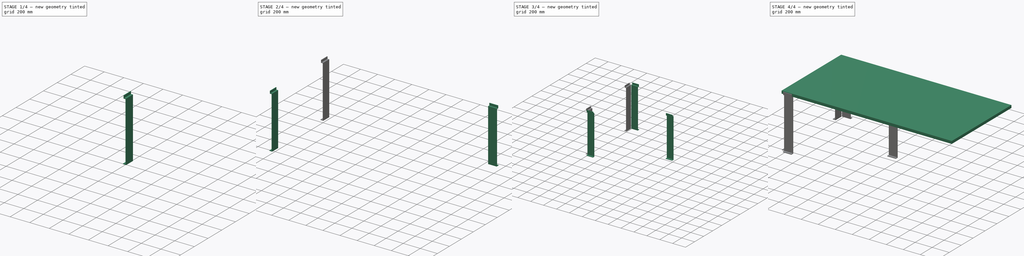
[diagram: build sequence overview — one tinted view per stage of 4, left to right]
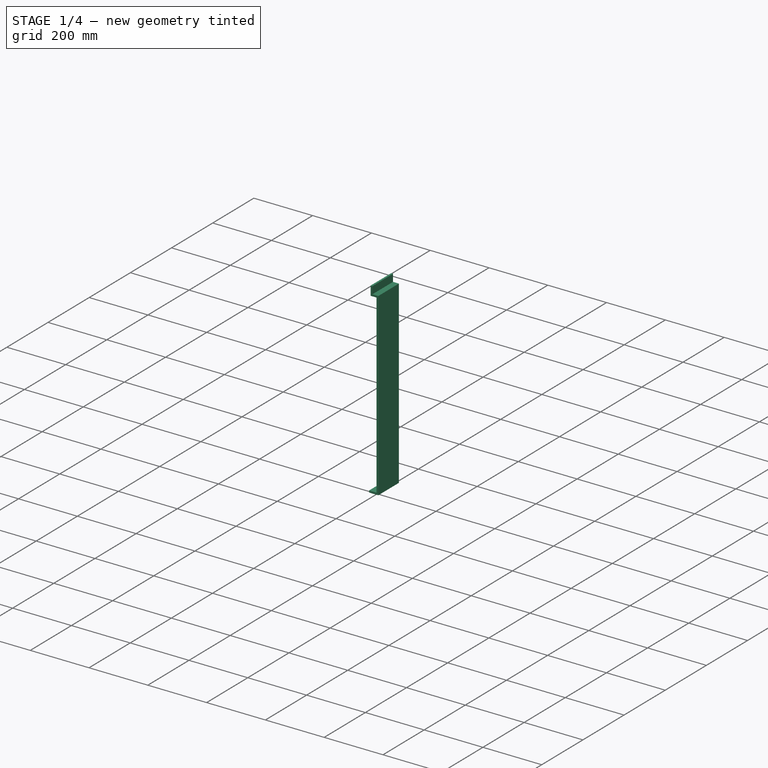
[diagram: stage 1 of 4 — iso view after this stage's code; geometry added in this stage tinted green]
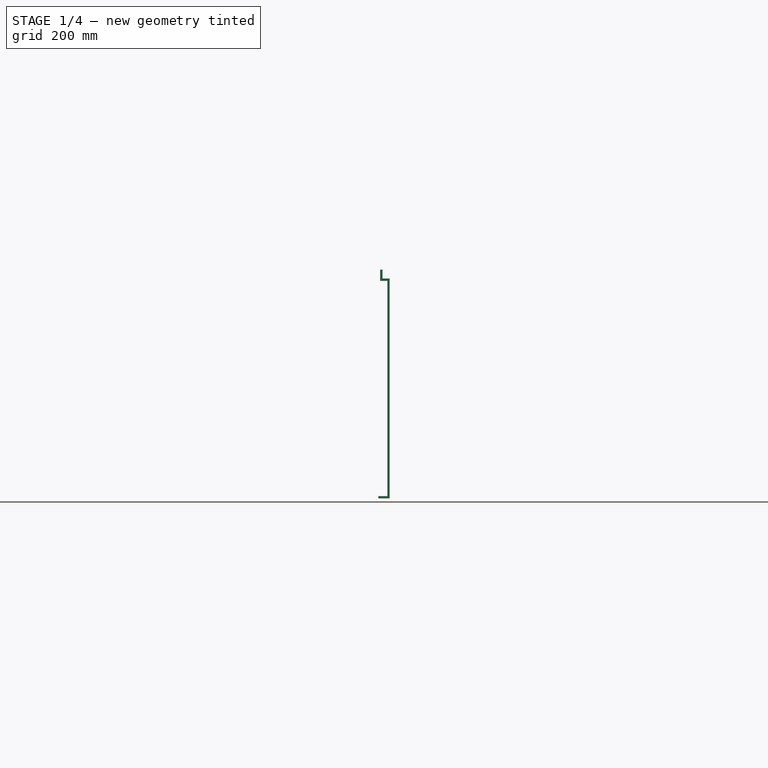
[diagram: stage 1 of 4 — front view after this stage's code; geometry added in this stage tinted green]
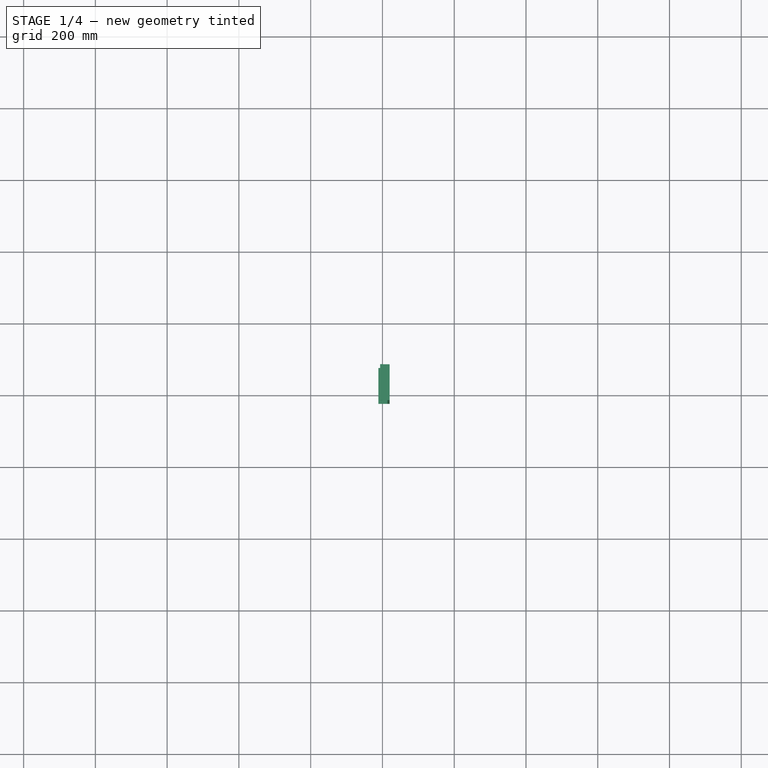
[diagram: stage 1 of 4 — top view after this stage's code; geometry added in this stage tinted green]
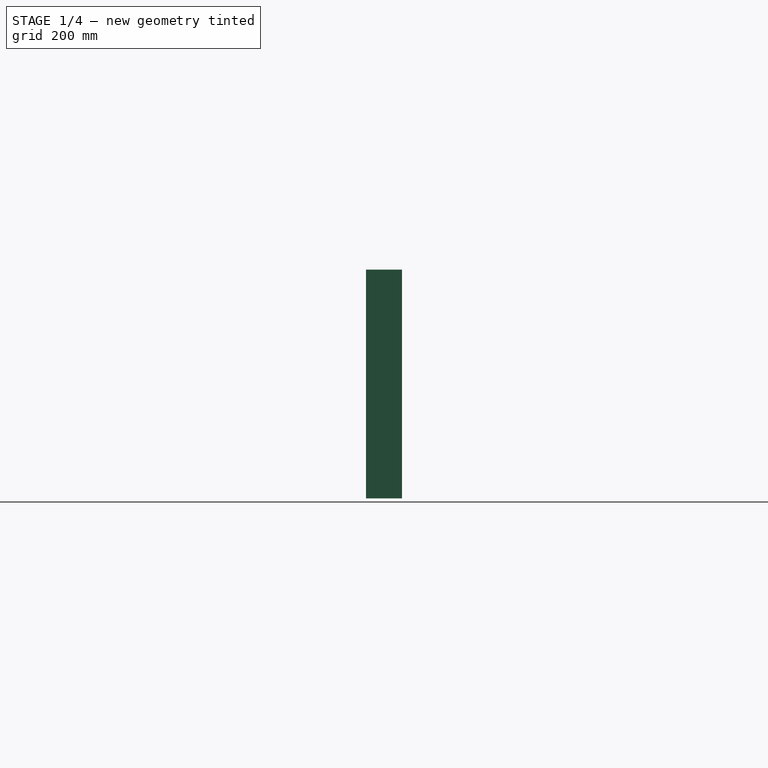
[diagram: stage 1 of 4 — right view after this stage's code; geometry added in this stage tinted green]
FCSTD DOCUMENT  (FreeCAD 0.18R4 (GitTag))
Label: WoodArt Ejercicio 003
Comment: https://designlibre.org/license-en/\nStarting from the topic that matters most in these times COVID-19 I have read a note from a protector for doctors called AerosolBox with a CC design for reproducti... (+266 chars)
License: Other
LicenseURL: https://designlibre.org/license-en/
objects: Sketcher::SketchObject×7, PartDesign::Pad×7, PartDesign::Body×7, Part::Mirroring×6, App::Part×2
note: 34 computed .brp shape members not serialized (recipe doc carries the construction recipe); baked Part::Feature solids carry a one-line shape summary decoded from their .brp

FEATURE [PartDesign::Body] Body005
  Group = -> [Sketch005,Pad005]
  Origin = -> Origin007
  Placement = pos=(977,-500,0) rot=(0,0,1;0rad)
  Tip = -> Pad005
FEATURE [Sketcher::SketchObject] Sketch006
  MapMode = 5
  Placement = pos=(0,0,0) rot=(0.57735,0.57735,0.57735;2.0944rad)
  Support = -> [YZ_Plane008]
  sketch-geometry (12):
    g0: LineSegment StartX=0 StartY=25 StartZ=0 EndX=0 EndY=0 EndZ=0
    g1: LineSegment StartX=0 StartY=0 StartZ=0 EndX=20 EndY=0 EndZ=0
    g2: LineSegment StartX=20 StartY=0 StartZ=0 EndX=20 EndY=-612.7 EndZ=0
    g3: LineSegment StartX=20 StartY=-612.7 StartZ=0 EndX=-11.35 EndY=-612.7 EndZ=0
    g4: LineSegment StartX=-11.35 StartY=-612.7 StartZ=0 EndX=-11.35 EndY=-606.35 EndZ=0
    g5: LineSegment StartX=-11.35 StartY=-606.35 StartZ=0 EndX=13.65 EndY=-606.35 EndZ=0
    g6: LineSegment StartX=13.65 StartY=-606.35 StartZ=0 EndX=13.65 EndY=-6.35 EndZ=0
    g7: LineSegment StartX=13.65 StartY=-6.35 StartZ=0 EndX=-6.35 EndY=-6.35 EndZ=0
    g8: LineSegment StartX=-6.35 StartY=-6.35 StartZ=0 EndX=-6.35 EndY=25 EndZ=0
    g9: LineSegment StartX=-6.35 StartY=25 StartZ=0 EndX=0 EndY=25 EndZ=0
    g10: LineSegment [constr] StartX=13.65 StartY=-606.35 StartZ=0 EndX=20 EndY=-606.35 EndZ=0
    g11: LineSegment [constr] StartX=13.65 StartY=-6.35 StartZ=0 EndX=13.65 EndY=0 EndZ=0
  constraints (35):
    c: PointOnObject(g0,g-2)
    c: Coincident(g0,g-1)
    c: Coincident(g0,g1)
    c: PointOnObject(g1,g-1)
    c: Coincident(g1,g2)
    c: Vertical(g2)
    c: Coincident(g2,g3)
    c: Horizontal(g3)
    c: Coincident(g3,g4)
    c: Coincident(g4,g5)
    c: Horizontal(g5)
    c: Coincident(g5,g6)
    c: Vertical(g6)
    c: Coincident(g6,g7)
    c: Horizontal(g7)
    c: Coincident(g7,g8)
    c: Vertical(g8)
    c: Coincident(g8,g9)
    c: Coincident(g9,g0)
    c: Horizontal(g9)
    c: Vertical(g4)
    c: Coincident(g5,g10)
    c: PointOnObject(g10,g2)
    c: Horizontal(g10)
    c: DistanceY(g4,g4) = 6.35
    c: DistanceY(g6,g6) = 600
    c: DistanceY(g0,g0) = 25
    c: Coincident(g6,g11)
    c: PointOnObject(g11,g1)
    c: Vertical(g11)
    c: Equal(g9,g11)
    c: Equal(g11,g10)
    c: Equal(g10,g4)
    c: DistanceX(g5,g5) = 25
    c: DistanceX(g7,g7) = 20
FEATURE [PartDesign::Pad] Pad006
  Length = 100
  Length2 = 100
  Placement = pos=(0,0,0) rot=(0.57735,0.57735,0.57735;2.0944rad)
  Profile = -> Sketch006
  Refine = true
  Reversed = true
  Type = 0
FEATURE [Part::Mirroring] Part__Mirroring001  label="Body006 (Mirror #2)"
  Base = (0,0,0)
  Normal = (0,1,0)
  Source = -> Body006
FEATURE [Part::Mirroring] Part__Mirroring005  label="Body006 (Mirror #6)"
  Base = (0,0,0)
  Normal = (1,0,0)
  Source = -> Part__Mirroring001
FEATURE [App::Part] Part
  Group = -> [Body,Body005,Body006,Part__Mirroring,Part__Mirroring001,Part__Mirroring003,Part__Mirroring002,Part__Mirroring005,Part__Mirroring004]
  Origin = -> Origin
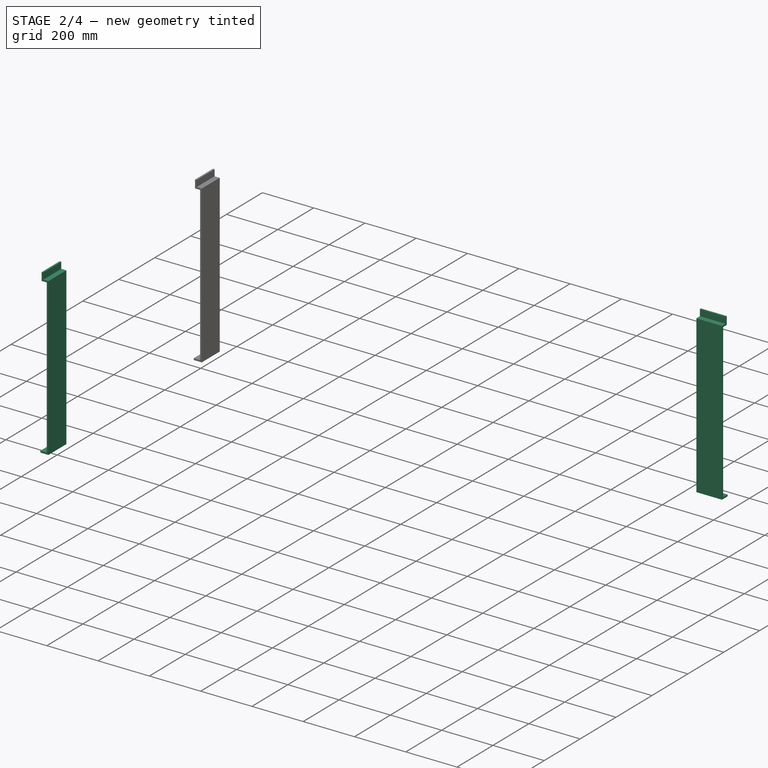
[diagram: stage 2 of 4 — iso view after this stage's code; geometry added in this stage tinted green]
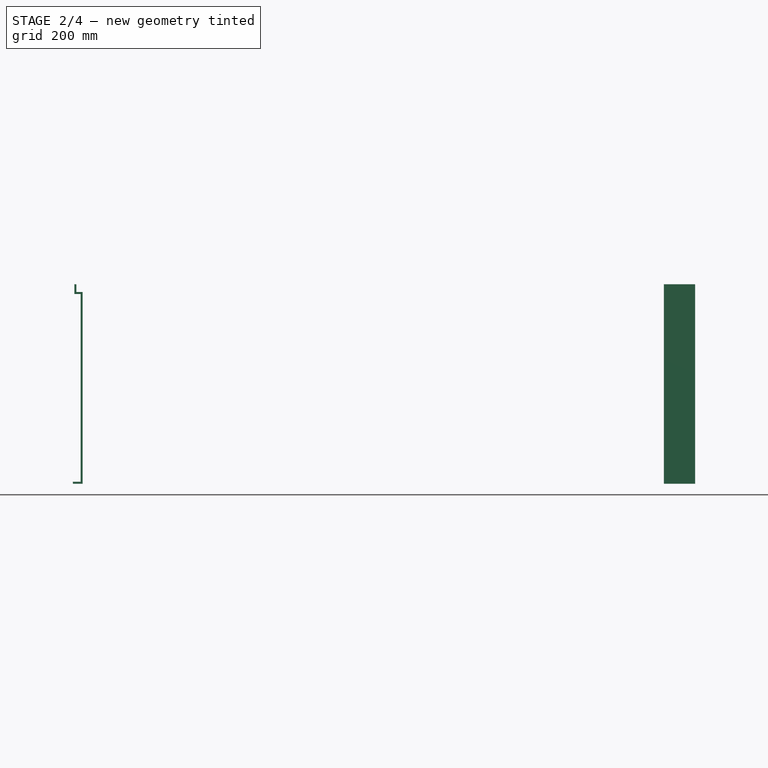
[diagram: stage 2 of 4 — front view after this stage's code; geometry added in this stage tinted green]
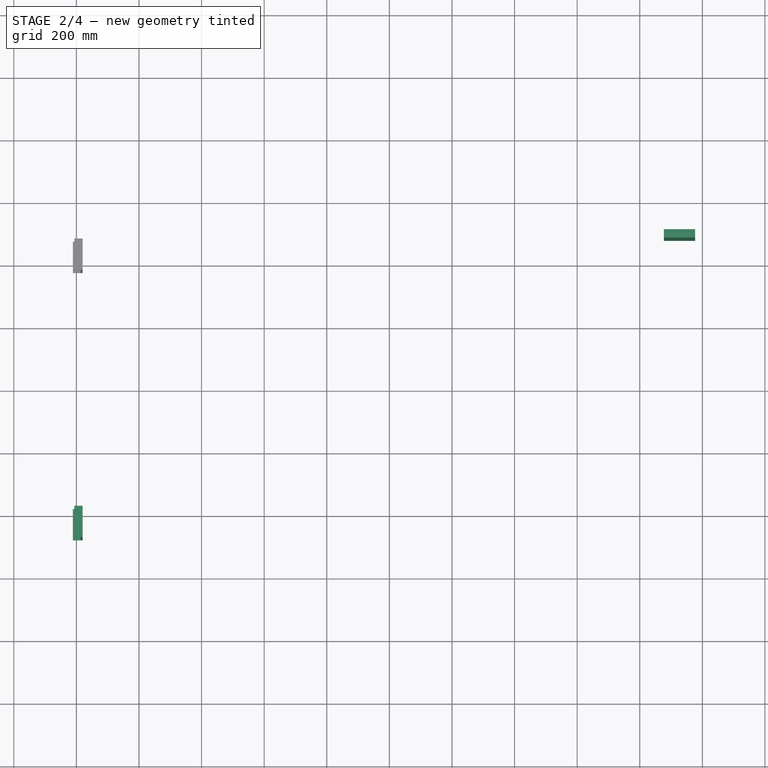
[diagram: stage 2 of 4 — top view after this stage's code; geometry added in this stage tinted green]
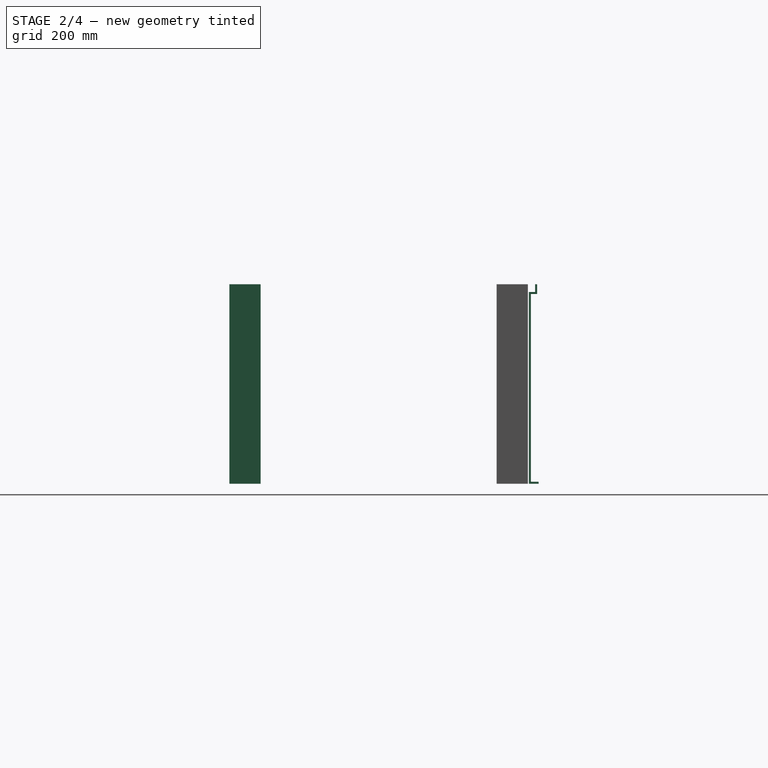
[diagram: stage 2 of 4 — right view after this stage's code; geometry added in this stage tinted green]
FEATURE [PartDesign::Body] Body004
  Group = -> [Sketch004,Pad004]
  Origin = -> Origin006
  Placement = pos=(0,977,0) rot=(0,0,1;1.5708rad)
  Tip = -> Pad004
FEATURE [App::Part] Part001
  Group = -> [Body001,Body002,Body003,Body004]
  Origin = -> Origin001
  Placement = pos=(1000,-500,0) rot=(0,0,1;0rad)
FEATURE [Sketcher::SketchObject] Sketch005
  MapMode = 5
  Placement = pos=(0,0,0) rot=(0.57735,0.57735,0.57735;2.0944rad)
  Support = -> [YZ_Plane009]
  sketch-geometry (12):
    g0: LineSegment StartX=0 StartY=25 StartZ=0 EndX=0 EndY=0 EndZ=0
    g1: LineSegment StartX=0 StartY=0 StartZ=0 EndX=20 EndY=0 EndZ=0
    g2: LineSegment StartX=20 StartY=0 StartZ=0 EndX=20 EndY=-612.7 EndZ=0
    g3: LineSegment StartX=20 StartY=-612.7 StartZ=0 EndX=-11.35 EndY=-612.7 EndZ=0
    g4: LineSegment StartX=-11.35 StartY=-612.7 StartZ=0 EndX=-11.35 EndY=-606.35 EndZ=0
    g5: LineSegment StartX=-11.35 StartY=-606.35 StartZ=0 EndX=13.65 EndY=-606.35 EndZ=0
    g6: LineSegment StartX=13.65 StartY=-606.35 StartZ=0 EndX=13.65 EndY=-6.35 EndZ=0
    g7: LineSegment StartX=13.65 StartY=-6.35 StartZ=0 EndX=-6.35 EndY=-6.35 EndZ=0
    g8: LineSegment StartX=-6.35 StartY=-6.35 StartZ=0 EndX=-6.35 EndY=25 EndZ=0
    g9: LineSegment StartX=-6.35 StartY=25 StartZ=0 EndX=0 EndY=25 EndZ=0
    g10: LineSegment [constr] StartX=13.65 StartY=-606.35 StartZ=0 EndX=20 EndY=-606.35 EndZ=0
    g11: LineSegment [constr] StartX=13.65 StartY=-6.35 StartZ=0 EndX=13.65 EndY=0 EndZ=0
  constraints (35):
    c: PointOnObject(g0,g-2)
    c: Coincident(g0,g-1)
    c: Coincident(g0,g1)
    c: PointOnObject(g1,g-1)
    c: Coincident(g1,g2)
    c: Vertical(g2)
    c: Coincident(g2,g3)
    c: Horizontal(g3)
    c: Coincident(g3,g4)
    c: Coincident(g4,g5)
    c: Horizontal(g5)
    c: Coincident(g5,g6)
    c: Vertical(g6)
    c: Coincident(g6,g7)
    c: Horizontal(g7)
    c: Coincident(g7,g8)
    c: Vertical(g8)
    c: Coincident(g8,g9)
    c: Coincident(g9,g0)
    c: Horizontal(g9)
    c: Vertical(g4)
    c: Coincident(g5,g10)
    c: PointOnObject(g10,g2)
    c: Horizontal(g10)
    c: DistanceY(g4,g4) = 6.35
    c: DistanceY(g6,g6) = 600
    c: DistanceY(g0,g0) = 25
    c: Coincident(g6,g11)
    c: PointOnObject(g11,g1)
    c: Vertical(g11)
    c: Equal(g9,g11)
    c: Equal(g11,g10)
    c: Equal(g10,g4)
    c: DistanceX(g5,g5) = 25
    c: DistanceX(g7,g7) = 20
FEATURE [PartDesign::Pad] Pad005
  Length = 100
  Length2 = 100
  Placement = pos=(0,0,0) rot=(0.57735,0.57735,0.57735;2.0944rad)
  Profile = -> Sketch005
  Refine = true
  Reversed = true
  Type = 0
FEATURE [PartDesign::Body] Body006
  Group = -> [Sketch006,Pad006]
  Origin = -> Origin008
  Placement = pos=(1000,-377,0) rot=(0,0,1;1.5708rad)
  Tip = -> Pad006
FEATURE [Part::Mirroring] Part__Mirroring  label="Body005 (Mirror #1)"
  Base = (0,0,0)
  Normal = (0,1,0)
  Source = -> Body005
FEATURE [Part::Mirroring] Part__Mirroring004  label="Body006 (Mirror #5)"
  Base = (0,0,0)
  Normal = (1,0,0)
  Source = -> Body006
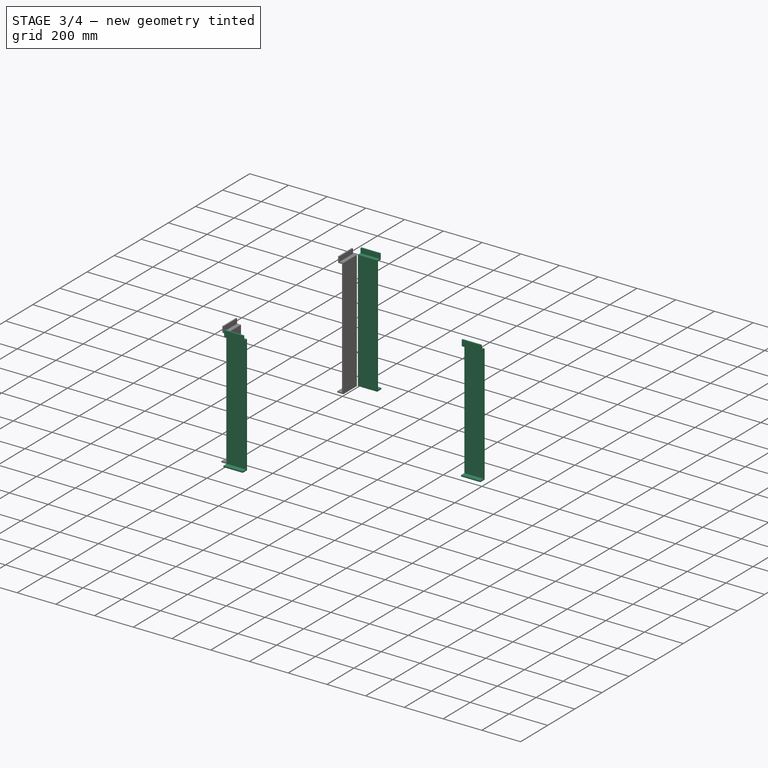
[diagram: stage 3 of 4 — iso view after this stage's code; geometry added in this stage tinted green]
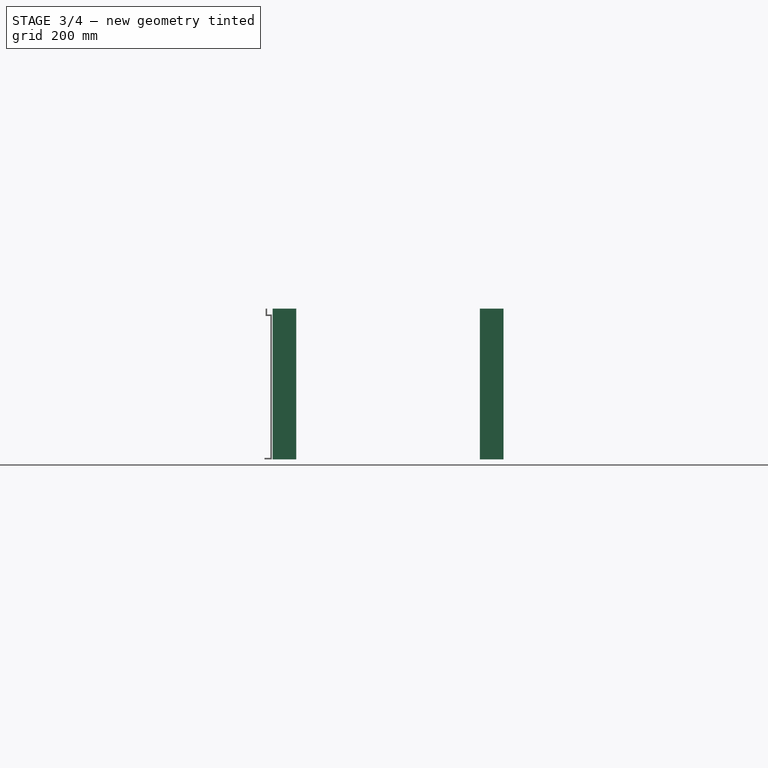
[diagram: stage 3 of 4 — front view after this stage's code; geometry added in this stage tinted green]
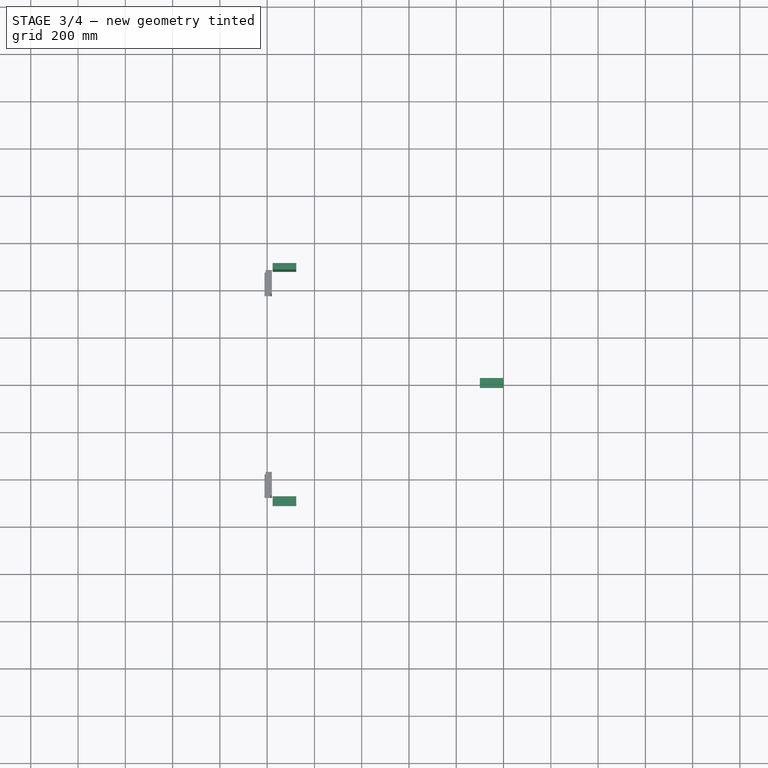
[diagram: stage 3 of 4 — top view after this stage's code; geometry added in this stage tinted green]
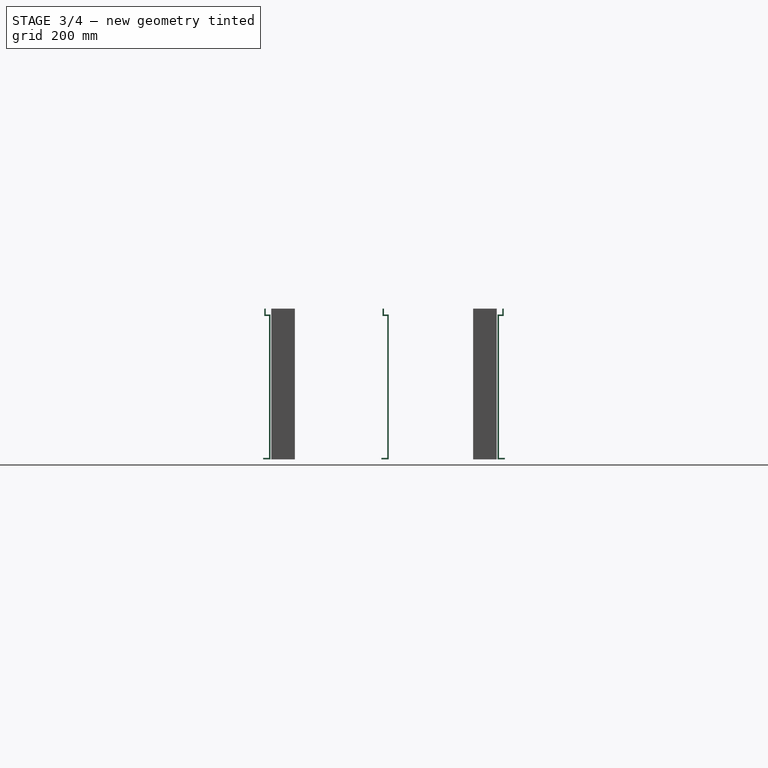
[diagram: stage 3 of 4 — right view after this stage's code; geometry added in this stage tinted green]
FEATURE [PartDesign::Body] Body002
  Group = -> [Sketch002,Pad002]
  Origin = -> Origin004
  Placement = pos=(2.8e-14,123,0) rot=(0,0,1;1.5708rad)
  Tip = -> Pad002
FEATURE [Sketcher::SketchObject] Sketch003
  MapMode = 5
  Placement = pos=(0,0,0) rot=(0.57735,0.57735,0.57735;2.0944rad)
  Support = -> [YZ_Plane006]
  sketch-geometry (12):
    g0: LineSegment StartX=0 StartY=25 StartZ=0 EndX=0 EndY=0 EndZ=0
    g1: LineSegment StartX=0 StartY=0 StartZ=0 EndX=20 EndY=0 EndZ=0
    g2: LineSegment StartX=20 StartY=0 StartZ=0 EndX=20 EndY=-612.7 EndZ=0
    g3: LineSegment StartX=20 StartY=-612.7 StartZ=0 EndX=-11.35 EndY=-612.7 EndZ=0
    g4: LineSegment StartX=-11.35 StartY=-612.7 StartZ=0 EndX=-11.35 EndY=-606.35 EndZ=0
    g5: LineSegment StartX=-11.35 StartY=-606.35 StartZ=0 EndX=13.65 EndY=-606.35 EndZ=0
    g6: LineSegment StartX=13.65 StartY=-606.35 StartZ=0 EndX=13.65 EndY=-6.35 EndZ=0
    g7: LineSegment StartX=13.65 StartY=-6.35 StartZ=0 EndX=-6.35 EndY=-6.35 EndZ=0
    g8: LineSegment StartX=-6.35 StartY=-6.35 StartZ=0 EndX=-6.35 EndY=25 EndZ=0
    g9: LineSegment StartX=-6.35 StartY=25 StartZ=0 EndX=0 EndY=25 EndZ=0
    g10: LineSegment [constr] StartX=13.65 StartY=-606.35 StartZ=0 EndX=20 EndY=-606.35 EndZ=0
    g11: LineSegment [constr] StartX=13.65 StartY=-6.35 StartZ=0 EndX=13.65 EndY=0 EndZ=0
  constraints (35):
    c: PointOnObject(g0,g-2)
    c: Coincident(g0,g-1)
    c: Coincident(g0,g1)
    c: PointOnObject(g1,g-1)
    c: Coincident(g1,g2)
    c: Vertical(g2)
    c: Coincident(g2,g3)
    c: Horizontal(g3)
    c: Coincident(g3,g4)
    c: Coincident(g4,g5)
    c: Horizontal(g5)
    c: Coincident(g5,g6)
    c: Vertical(g6)
    c: Coincident(g6,g7)
    c: Horizontal(g7)
    c: Coincident(g7,g8)
    c: Vertical(g8)
    c: Coincident(g8,g9)
    c: Coincident(g9,g0)
    c: Horizontal(g9)
    c: Vertical(g4)
    c: Coincident(g5,g10)
    c: PointOnObject(g10,g2)
    c: Horizontal(g10)
    c: DistanceY(g4,g4) = 6.35
    c: DistanceY(g6,g6) = 600
    c: DistanceY(g0,g0) = 25
    c: Coincident(g6,g11)
    c: PointOnObject(g11,g1)
    c: Vertical(g11)
    c: Equal(g9,g11)
    c: Equal(g11,g10)
    c: Equal(g10,g4)
    c: DistanceX(g5,g5) = 25
    c: DistanceX(g7,g7) = 20
FEATURE [PartDesign::Pad] Pad003
  Length = 100
  Length2 = 100
  Placement = pos=(0,0,0) rot=(0.57735,0.57735,0.57735;2.0944rad)
  Profile = -> Sketch003
  Refine = true
  Reversed = true
  Type = 0
FEATURE [PartDesign::Body] Body003
  Group = -> [Sketch003,Pad003]
  Origin = -> Origin005
  Placement = pos=(-123,1000,0) rot=(0,0,1;3.14159rad)
  Tip = -> Pad003
FEATURE [Sketcher::SketchObject] Sketch004
  MapMode = 5
  Placement = pos=(0,0,0) rot=(0.57735,0.57735,0.57735;2.0944rad)
  Support = -> [YZ_Plane007]
  sketch-geometry (12):
    g0: LineSegment StartX=0 StartY=25 StartZ=0 EndX=0 EndY=0 EndZ=0
    g1: LineSegment StartX=0 StartY=0 StartZ=0 EndX=20 EndY=0 EndZ=0
    g2: LineSegment StartX=20 StartY=0 StartZ=0 EndX=20 EndY=-612.7 EndZ=0
    g3: LineSegment StartX=20 StartY=-612.7 StartZ=0 EndX=-11.35 EndY=-612.7 EndZ=0
    g4: LineSegment StartX=-11.35 StartY=-612.7 StartZ=0 EndX=-11.35 EndY=-606.35 EndZ=0
    g5: LineSegment StartX=-11.35 StartY=-606.35 StartZ=0 EndX=13.65 EndY=-606.35 EndZ=0
    g6: LineSegment StartX=13.65 StartY=-606.35 StartZ=0 EndX=13.65 EndY=-6.35 EndZ=0
    g7: LineSegment StartX=13.65 StartY=-6.35 StartZ=0 EndX=-6.35 EndY=-6.35 EndZ=0
    g8: LineSegment StartX=-6.35 StartY=-6.35 StartZ=0 EndX=-6.35 EndY=25 EndZ=0
    g9: LineSegment StartX=-6.35 StartY=25 StartZ=0 EndX=0 EndY=25 EndZ=0
    g10: LineSegment [constr] StartX=13.65 StartY=-606.35 StartZ=0 EndX=20 EndY=-606.35 EndZ=0
    g11: LineSegment [constr] StartX=13.65 StartY=-6.35 StartZ=0 EndX=13.65 EndY=0 EndZ=0
  constraints (35):
    c: PointOnObject(g0,g-2)
    c: Coincident(g0,g-1)
    c: Coincident(g0,g1)
    c: PointOnObject(g1,g-1)
    c: Coincident(g1,g2)
    c: Vertical(g2)
    c: Coincident(g2,g3)
    c: Horizontal(g3)
    c: Coincident(g3,g4)
    c: Coincident(g4,g5)
    c: Horizontal(g5)
    c: Coincident(g5,g6)
    c: Vertical(g6)
    c: Coincident(g6,g7)
    c: Horizontal(g7)
    c: Coincident(g7,g8)
    c: Vertical(g8)
    c: Coincident(g8,g9)
    c: Coincident(g9,g0)
    c: Horizontal(g9)
    c: Vertical(g4)
    c: Coincident(g5,g10)
    c: PointOnObject(g10,g2)
    c: Horizontal(g10)
    c: DistanceY(g4,g4) = 6.35
    c: DistanceY(g6,g6) = 600
    c: DistanceY(g0,g0) = 25
    c: Coincident(g6,g11)
    c: PointOnObject(g11,g1)
    c: Vertical(g11)
    c: Equal(g9,g11)
    c: Equal(g11,g10)
    c: Equal(g10,g4)
    c: DistanceX(g5,g5) = 25
    c: DistanceX(g7,g7) = 20
FEATURE [PartDesign::Pad] Pad004
  Length = 100
  Length2 = 100
  Placement = pos=(0,0,0) rot=(0.57735,0.57735,0.57735;2.0944rad)
  Profile = -> Sketch004
  Refine = true
  Reversed = true
  Type = 0
FEATURE [Part::Mirroring] Part__Mirroring002  label="Body005 (Mirror #3)"
  Base = (0,0,0)
  Normal = (1,0,0)
  Source = -> Body005
FEATURE [Part::Mirroring] Part__Mirroring003  label="Body005 (Mirror #4)"
  Base = (0,0,0)
  Normal = (1,0,0)
  Source = -> Part__Mirroring
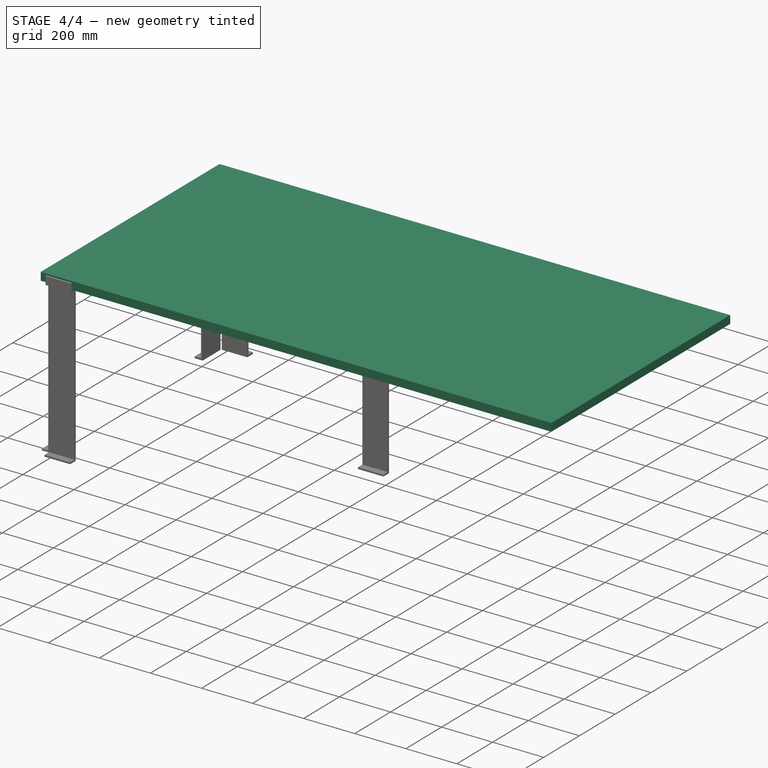
[diagram: stage 4 of 4 — iso view after this stage's code; geometry added in this stage tinted green]
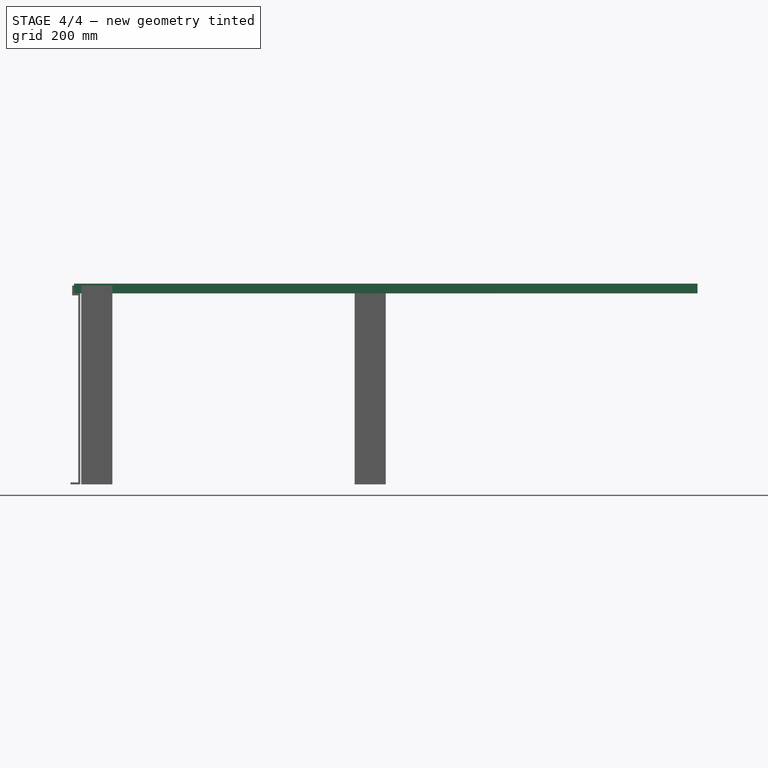
[diagram: stage 4 of 4 — front view after this stage's code; geometry added in this stage tinted green]
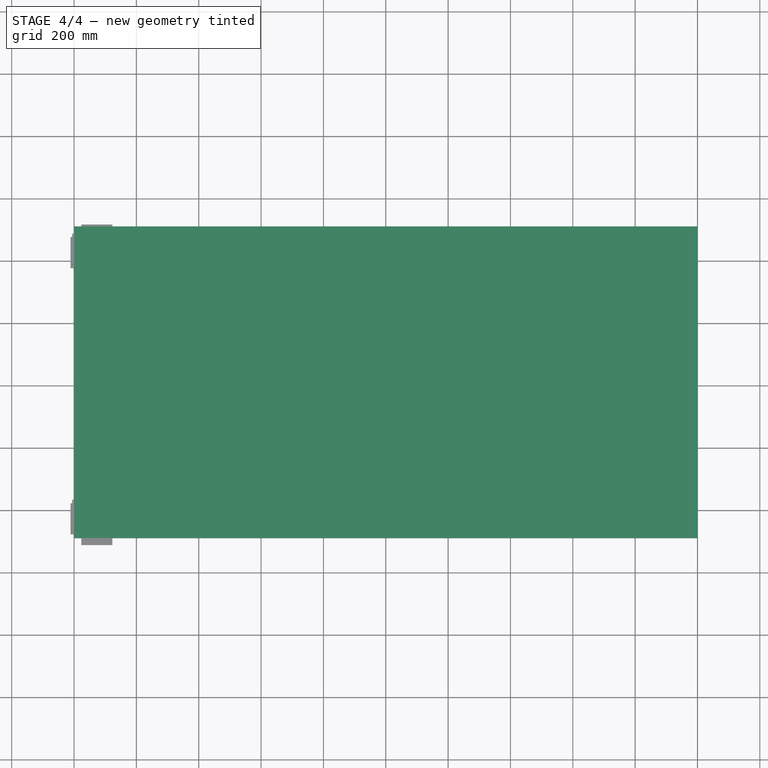
[diagram: stage 4 of 4 — top view after this stage's code; geometry added in this stage tinted green]
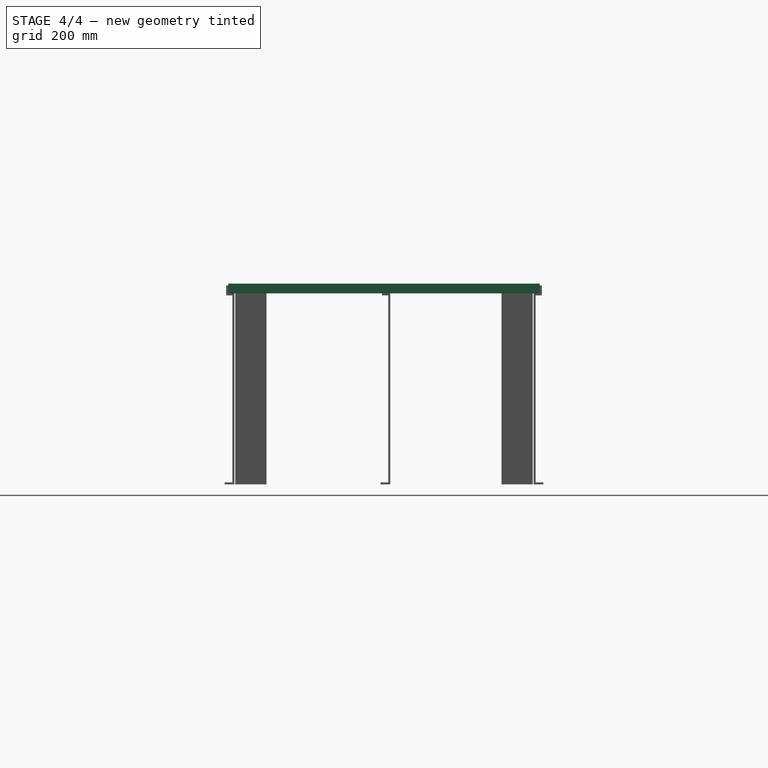
[diagram: stage 4 of 4 — right view after this stage's code; geometry added in this stage tinted green]
FEATURE [Sketcher::SketchObject] Sketch
  MapMode = 5
  Support = -> [XY_Plane002]
  sketch-geometry (4):
    g0: LineSegment StartX=-1000 StartY=500 StartZ=0 EndX=1000 EndY=500 EndZ=0
    g1: LineSegment StartX=1000 StartY=500 StartZ=0 EndX=1000 EndY=-500 EndZ=0
    g2: LineSegment StartX=1000 StartY=-500 StartZ=0 EndX=-1000 EndY=-500 EndZ=0
    g3: LineSegment StartX=-1000 StartY=-500 StartZ=0 EndX=-1000 EndY=500 EndZ=0
  constraints (11):
    c: Coincident(g0,g1)
    c: Coincident(g1,g2)
    c: Coincident(g2,g3)
    c: Coincident(g3,g0)
    c: Horizontal(g0)
    c: Horizontal(g2)
    c: Vertical(g1)
    c: Vertical(g3)
    c: DistanceX(g0,g0) = 2000
    c: DistanceY(g1,g1) = 1000
    c: Symmetric(g0,g1,g-1)
FEATURE [PartDesign::Pad] Pad
  Length = 31
  Length2 = 100
  Profile = -> Sketch
  Refine = true
  Type = 0
FEATURE [PartDesign::Body] Body
  Group = -> [Sketch,Pad]
  Origin = -> Origin002
  Tip = -> Pad
FEATURE [Sketcher::SketchObject] Sketch001
  MapMode = 5
  Placement = pos=(0,0,0) rot=(0.57735,0.57735,0.57735;2.0944rad)
  Support = -> [YZ_Plane003]
  sketch-geometry (12):
    g0: LineSegment StartX=0 StartY=25 StartZ=0 EndX=0 EndY=0 EndZ=0
    g1: LineSegment StartX=0 StartY=0 StartZ=0 EndX=20 EndY=0 EndZ=0
    g2: LineSegment StartX=20 StartY=0 StartZ=0 EndX=20 EndY=-612.7 EndZ=0
    g3: LineSegment StartX=20 StartY=-612.7 StartZ=0 EndX=-11.35 EndY=-612.7 EndZ=0
    g4: LineSegment StartX=-11.35 StartY=-612.7 StartZ=0 EndX=-11.35 EndY=-606.35 EndZ=0
    g5: LineSegment StartX=-11.35 StartY=-606.35 StartZ=0 EndX=13.65 EndY=-606.35 EndZ=0
    g6: LineSegment StartX=13.65 StartY=-606.35 StartZ=0 EndX=13.65 EndY=-6.35 EndZ=0
    g7: LineSegment StartX=13.65 StartY=-6.35 StartZ=0 EndX=-6.35 EndY=-6.35 EndZ=0
    g8: LineSegment StartX=-6.35 StartY=-6.35 StartZ=0 EndX=-6.35 EndY=25 EndZ=0
    g9: LineSegment StartX=-6.35 StartY=25 StartZ=0 EndX=0 EndY=25 EndZ=0
    g10: LineSegment [constr] StartX=13.65 StartY=-606.35 StartZ=0 EndX=20 EndY=-606.35 EndZ=0
    g11: LineSegment [constr] StartX=13.65 StartY=-6.35 StartZ=0 EndX=13.65 EndY=0 EndZ=0
  constraints (35):
    c: PointOnObject(g0,g-2)
    c: Coincident(g0,g-1)
    c: Coincident(g0,g1)
    c: PointOnObject(g1,g-1)
    c: Coincident(g1,g2)
    c: Vertical(g2)
    c: Coincident(g2,g3)
    c: Horizontal(g3)
    c: Coincident(g3,g4)
    c: Coincident(g4,g5)
    c: Horizontal(g5)
    c: Coincident(g5,g6)
    c: Vertical(g6)
    c: Coincident(g6,g7)
    c: Horizontal(g7)
    c: Coincident(g7,g8)
    c: Vertical(g8)
    c: Coincident(g8,g9)
    c: Coincident(g9,g0)
    c: Horizontal(g9)
    c: Vertical(g4)
    c: Coincident(g5,g10)
    c: PointOnObject(g10,g2)
    c: Horizontal(g10)
    c: DistanceY(g4,g4) = 6.35
    c: DistanceY(g6,g6) = 600
    c: DistanceY(g0,g0) = 25
    c: Coincident(g6,g11)
    c: PointOnObject(g11,g1)
    c: Vertical(g11)
    c: Equal(g9,g11)
    c: Equal(g11,g10)
    c: Equal(g10,g4)
    c: DistanceX(g5,g5) = 25
    c: DistanceX(g7,g7) = 20
FEATURE [PartDesign::Pad] Pad001
  Length = 100
  Length2 = 100
  Placement = pos=(0,0,0) rot=(0.57735,0.57735,0.57735;2.0944rad)
  Profile = -> Sketch001
  Refine = true
  Reversed = true
  Type = 0
FEATURE [PartDesign::Body] Body001
  Group = -> [Sketch001,Pad001]
  Origin = -> Origin003
  Placement = pos=(-23,0,0) rot=(0,0,1;0rad)
  Tip = -> Pad001
FEATURE [Sketcher::SketchObject] Sketch002
  MapMode = 5
  Placement = pos=(0,0,0) rot=(0.57735,0.57735,0.57735;2.0944rad)
  Support = -> [YZ_Plane004]
  sketch-geometry (12):
    g0: LineSegment StartX=0 StartY=25 StartZ=0 EndX=0 EndY=0 EndZ=0
    g1: LineSegment StartX=0 StartY=0 StartZ=0 EndX=20 EndY=0 EndZ=0
    g2: LineSegment StartX=20 StartY=0 StartZ=0 EndX=20 EndY=-612.7 EndZ=0
    g3: LineSegment StartX=20 StartY=-612.7 StartZ=0 EndX=-11.35 EndY=-612.7 EndZ=0
    g4: LineSegment StartX=-11.35 StartY=-612.7 StartZ=0 EndX=-11.35 EndY=-606.35 EndZ=0
    g5: LineSegment StartX=-11.35 StartY=-606.35 StartZ=0 EndX=13.65 EndY=-606.35 EndZ=0
    g6: LineSegment StartX=13.65 StartY=-606.35 StartZ=0 EndX=13.65 EndY=-6.35 EndZ=0
    g7: LineSegment StartX=13.65 StartY=-6.35 StartZ=0 EndX=-6.35 EndY=-6.35 EndZ=0
    g8: LineSegment StartX=-6.35 StartY=-6.35 StartZ=0 EndX=-6.35 EndY=25 EndZ=0
    g9: LineSegment StartX=-6.35 StartY=25 StartZ=0 EndX=0 EndY=25 EndZ=0
    g10: LineSegment [constr] StartX=13.65 StartY=-606.35 StartZ=0 EndX=20 EndY=-606.35 EndZ=0
    g11: LineSegment [constr] StartX=13.65 StartY=-6.35 StartZ=0 EndX=13.65 EndY=0 EndZ=0
  constraints (35):
    c: PointOnObject(g0,g-2)
    c: Coincident(g0,g-1)
    c: Coincident(g0,g1)
    c: PointOnObject(g1,g-1)
    c: Coincident(g1,g2)
    c: Vertical(g2)
    c: Coincident(g2,g3)
    c: Horizontal(g3)
    c: Coincident(g3,g4)
    c: Coincident(g4,g5)
    c: Horizontal(g5)
    c: Coincident(g5,g6)
    c: Vertical(g6)
    c: Coincident(g6,g7)
    c: Horizontal(g7)
    c: Coincident(g7,g8)
    c: Vertical(g8)
    c: Coincident(g8,g9)
    c: Coincident(g9,g0)
    c: Horizontal(g9)
    c: Vertical(g4)
    c: Coincident(g5,g10)
    c: PointOnObject(g10,g2)
    c: Horizontal(g10)
    c: DistanceY(g4,g4) = 6.35
    c: DistanceY(g6,g6) = 600
    c: DistanceY(g0,g0) = 25
    c: Coincident(g6,g11)
    c: PointOnObject(g11,g1)
    c: Vertical(g11)
    c: Equal(g9,g11)
    c: Equal(g11,g10)
    c: Equal(g10,g4)
    c: DistanceX(g5,g5) = 25
    c: DistanceX(g7,g7) = 20
FEATURE [PartDesign::Pad] Pad002
  Length = 100
  Length2 = 100
  Placement = pos=(0,0,0) rot=(0.57735,0.57735,0.57735;2.0944rad)
  Profile = -> Sketch002
  Refine = true
  Reversed = true
  Type = 0
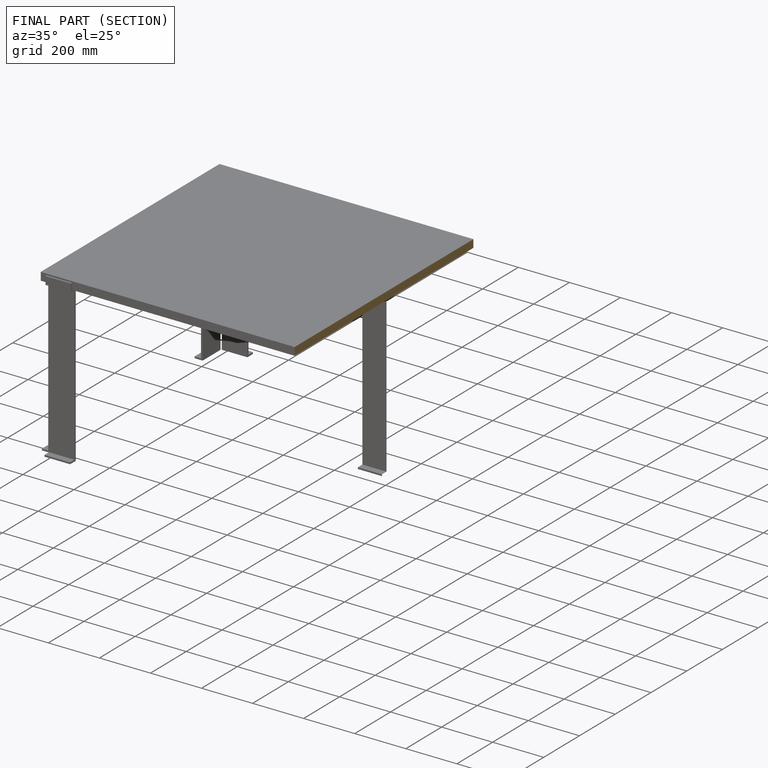
[diagram: finished part — half-section view (interior)]
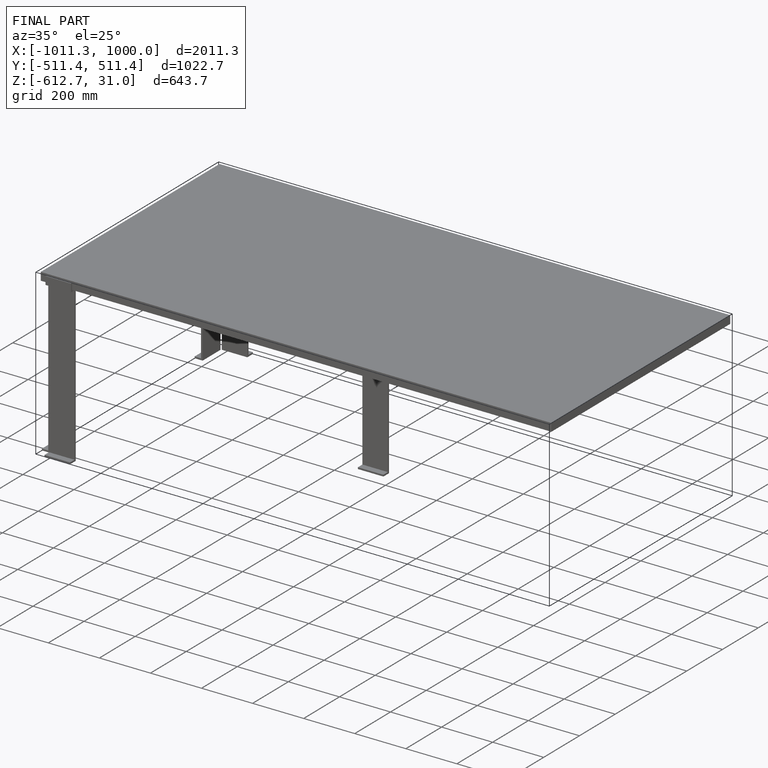
[diagram: finished part — iso view with bounding-box wireframe]
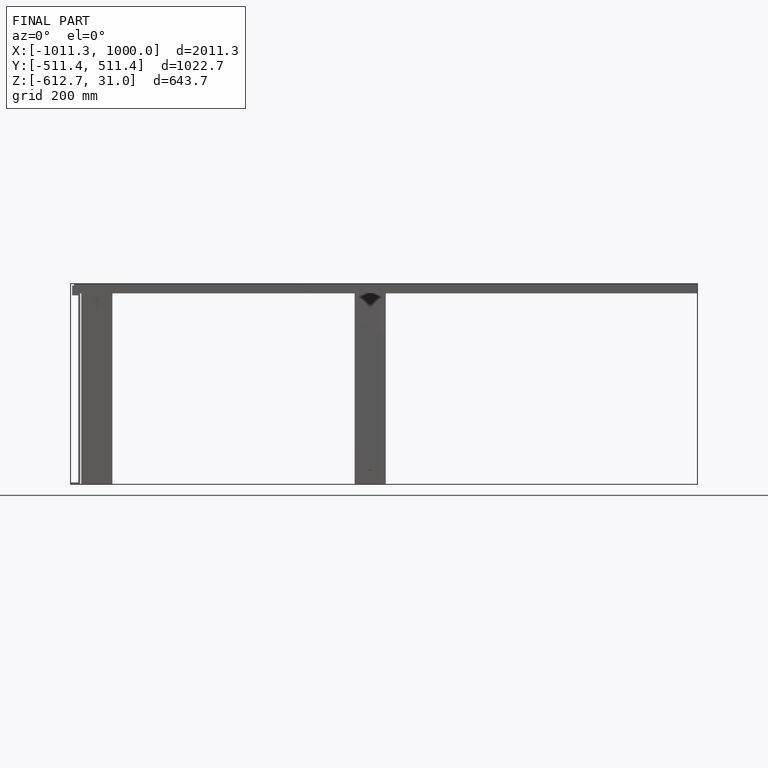
[diagram: finished part — front view with bounding-box wireframe]
